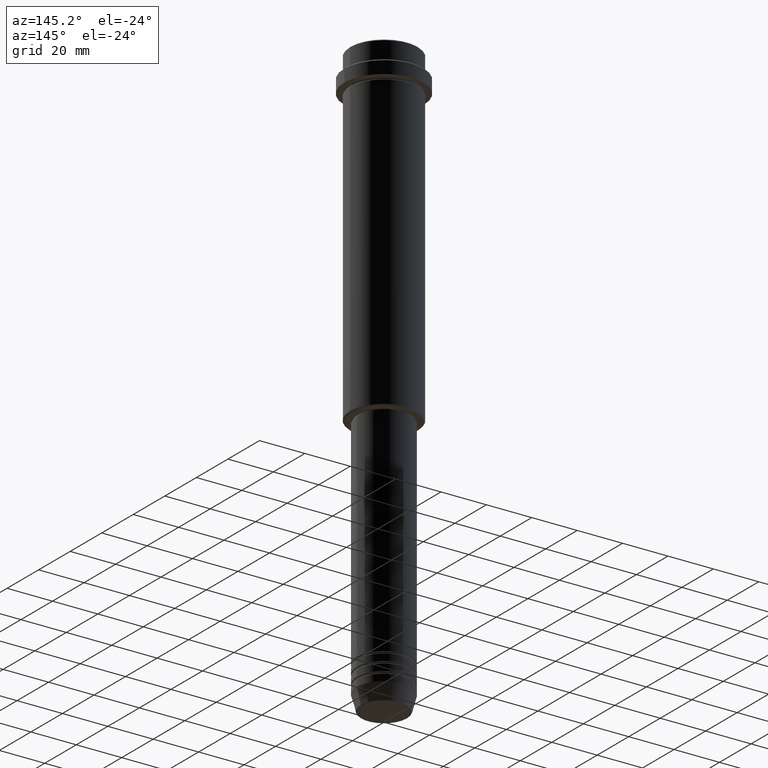
[diagram: clean part render]
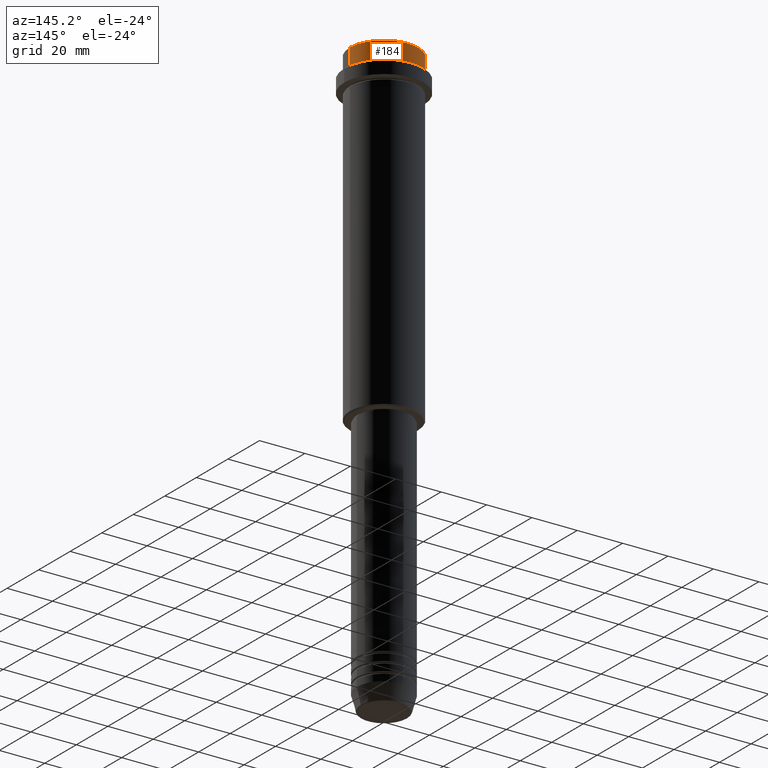
[diagram: same view with one face highlighted and labeled with its STEP entity id]
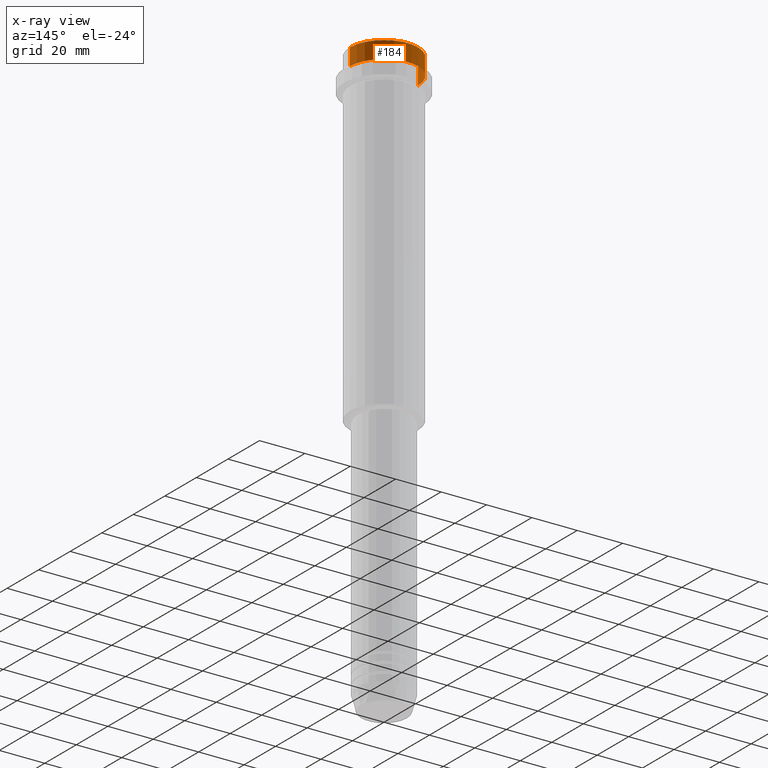
[diagram: x-ray of the same camera — body ghosted, the highlighted face saturated]
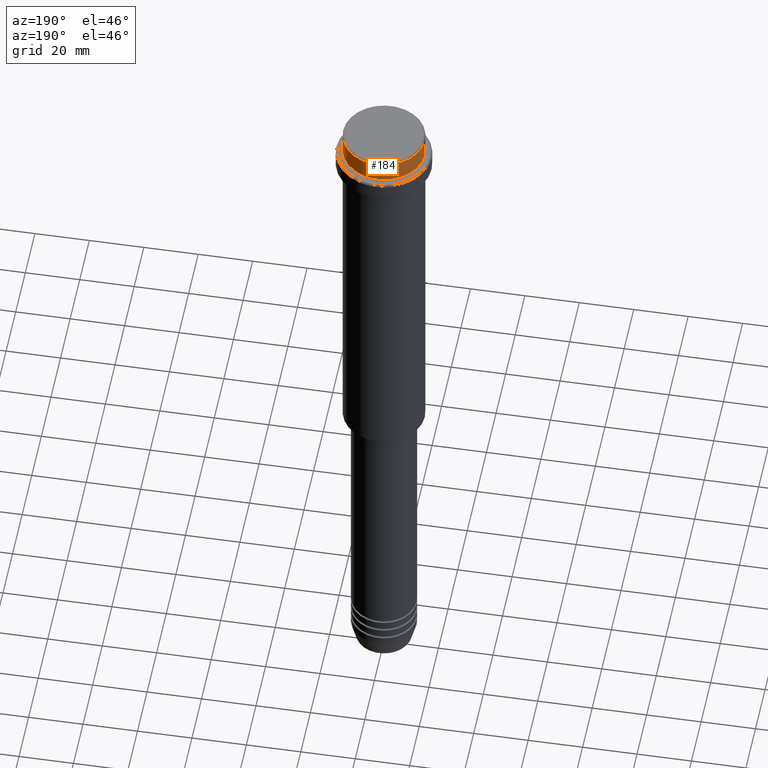
[diagram: same view with one face highlighted and labeled with its STEP entity id]
A machine part, auxiliary view. The second image highlights one B-rep face of the part: STEP entity #184.
The next image is the same camera in x-ray: the body ghosted, the highlighted face saturated — about 0% of this face is hidden behind the body in this view.
A second angle (auxiliary view) of the same face is appended — the face is thin or edge-on in the first view.
In plain terms, the highlighted cylindrical surface (partial cylindrical patch) has radius 15 mm, axis along (-0, -0, 1).
Its self-contained STEP definition (entity closure, byte-faithful):
#30 = DIRECTION ( 'NONE',  ( -0.000000000000000000, -0.000000000000000000, 1.000000000000000000 ) ) ;
#79 = EDGE_CURVE ( 'NONE', #1060, #618, #360, .T. ) ;
#182 = ORIENTED_EDGE ( 'NONE', *, *, #809, .T. ) ;
#184 = ADVANCED_FACE ( 'NONE', ( #1169 ), #639, .T. ) ;
#207 = DIRECTION ( 'NONE',  ( 1.000000000000000000, 0.000000000000000000, 0.000000000000000000 ) ) ;
#315 = VECTOR ( 'NONE', #610, 1000.000000000000000 ) ;
#344 = LINE ( 'NONE', #1002, #381 ) ;
#360 = CIRCLE ( 'NONE', #1046, 15.00000000000000000 ) ;
#381 = VECTOR ( 'NONE', #30, 1000.000000000000000 ) ;
#404 = DIRECTION ( 'NONE',  ( -0.000000000000000000, -0.000000000000000000, 1.000000000000000000 ) ) ;
#420 = CARTESIAN_POINT ( 'NONE',  ( 0.000000000000000000, 0.000000000000000000, -7.999999999999998224 ) ) ;
#458 = CARTESIAN_POINT ( 'NONE',  ( 15.00000000000000000, 0.000000000000000000, -7.999999999999998224 ) ) ;
#469 = EDGE_CURVE ( 'NONE', #1337, #1060, #344, .T. ) ;
#539 = DIRECTION ( 'NONE',  ( -0.000000000000000000, -0.000000000000000000, 1.000000000000000000 ) ) ;
#552 = AXIS2_PLACEMENT_3D ( 'NONE', #1178, #539, #1162 ) ;
#602 = AXIS2_PLACEMENT_3D ( 'NONE', #420, #404, #207 ) ;
#610 = DIRECTION ( 'NONE',  ( -0.000000000000000000, -0.000000000000000000, 1.000000000000000000 ) ) ;
#618 = VERTEX_POINT ( 'NONE', #937 ) ;
#639 = CYLINDRICAL_SURFACE ( 'NONE', #552, 15.00000000000000000 ) ;
#740 = EDGE_CURVE ( 'NONE', #1036, #618, #822, .T. ) ;
#809 = EDGE_CURVE ( 'NONE', #1036, #1337, #832, .T. ) ;
#822 = LINE ( 'NONE', #1236, #315 ) ;
#832 = CIRCLE ( 'NONE', #602, 15.00000000000000000 ) ;
#880 = ORIENTED_EDGE ( 'NONE', *, *, #469, .T. ) ;
#883 = CARTESIAN_POINT ( 'NONE',  ( 0.000000000000000000, 0.000000000000000000, -0.5000000000000108802 ) ) ;
#937 = CARTESIAN_POINT ( 'NONE',  ( 15.00000000000000000, 0.000000000000000000, -0.5000000000000108802 ) ) ;
#1002 = CARTESIAN_POINT ( 'NONE',  ( -15.00000000000000000, 1.836970198721029589E-15, 0.000000000000000000 ) ) ;
#1036 = VERTEX_POINT ( 'NONE', #458 ) ;
#1046 = AXIS2_PLACEMENT_3D ( 'NONE', #883, #1355, #1239 ) ;
#1060 = VERTEX_POINT ( 'NONE', #1104 ) ;
#1104 = CARTESIAN_POINT ( 'NONE',  ( -15.00000000000000000, 1.836970198721029589E-15, -0.5000000000000108802 ) ) ;
#1121 = ORIENTED_EDGE ( 'NONE', *, *, #740, .F. ) ;
#1162 = DIRECTION ( 'NONE',  ( 1.000000000000000000, 0.000000000000000000, 0.000000000000000000 ) ) ;
#1169 = FACE_OUTER_BOUND ( 'NONE', #1385, .T. ) ;
#1178 = CARTESIAN_POINT ( 'NONE',  ( 0.000000000000000000, 0.000000000000000000, 0.000000000000000000 ) ) ;
#1236 = CARTESIAN_POINT ( 'NONE',  ( 15.00000000000000000, 0.000000000000000000, 0.000000000000000000 ) ) ;
#1239 = DIRECTION ( 'NONE',  ( 1.000000000000000000, 0.000000000000000000, 0.000000000000000000 ) ) ;
#1314 = CARTESIAN_POINT ( 'NONE',  ( -15.00000000000000000, 1.836970198721029589E-15, -7.999999999999998224 ) ) ;
#1337 = VERTEX_POINT ( 'NONE', #1314 ) ;
#1355 = DIRECTION ( 'NONE',  ( 0.000000000000000000, 0.000000000000000000, -1.000000000000000000 ) ) ;
#1364 = ORIENTED_EDGE ( 'NONE', *, *, #79, .T. ) ;
#1385 = EDGE_LOOP ( 'NONE', ( #182, #880, #1364, #1121 ) ) ;